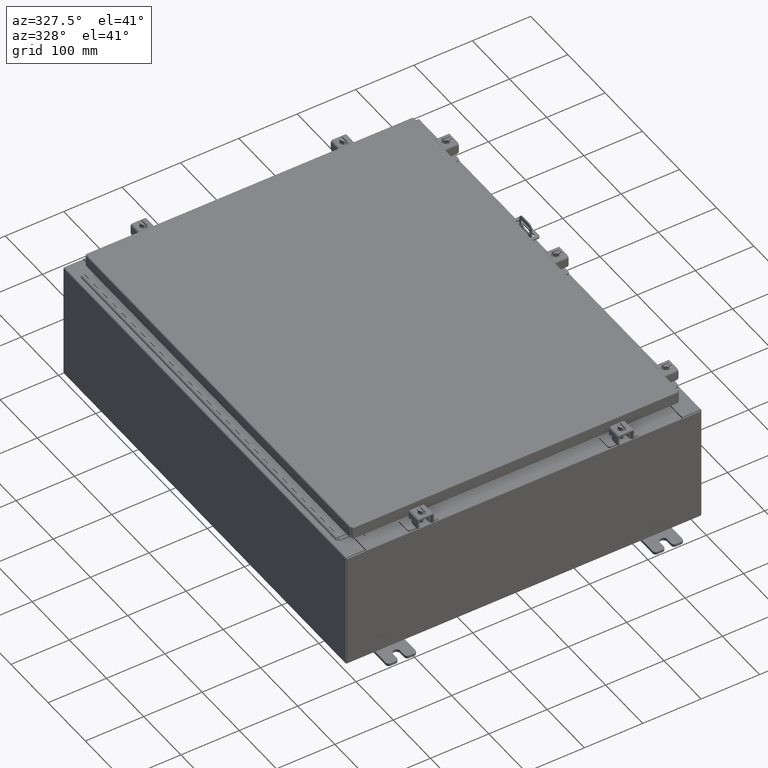
[diagram: clean part render]
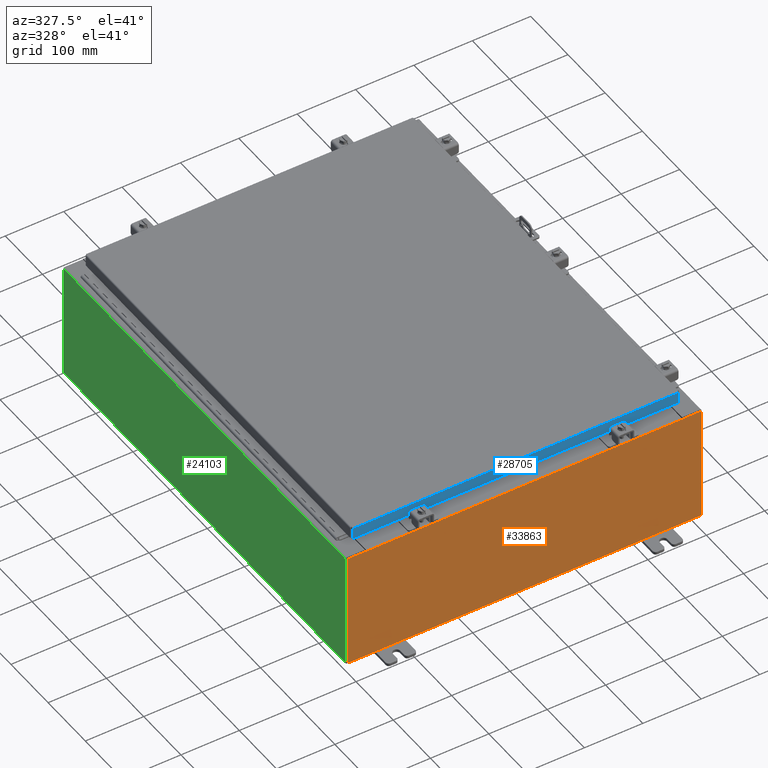
[diagram: same view with three faces highlighted in distinct colors, each labeled with its STEP entity id]
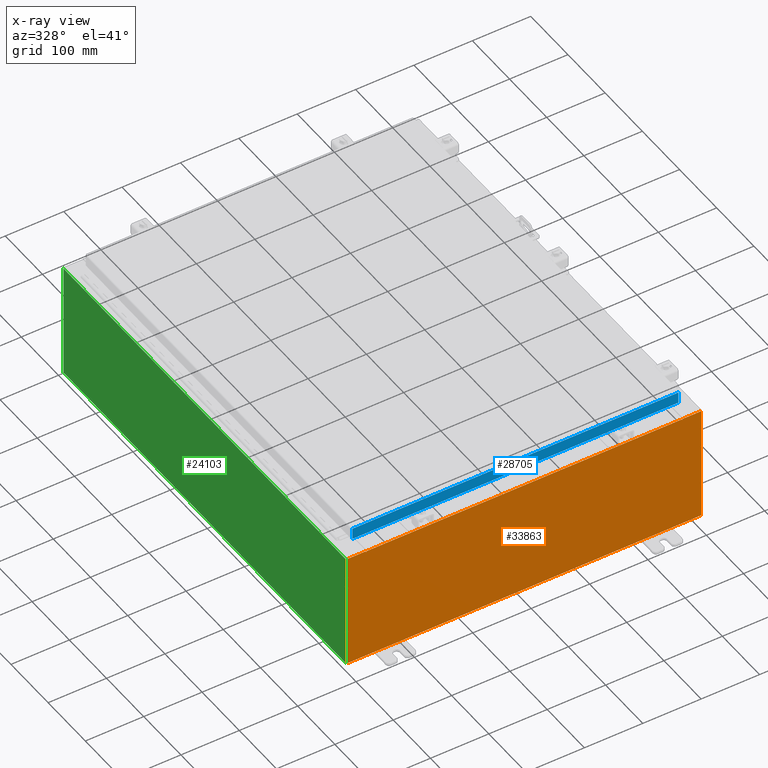
[diagram: x-ray of the same camera — body ghosted, the three highlighted faces saturated]
A machine part, auxiliary view with three faces highlighted in distinct colors.
The next image is the same camera in x-ray (body ghosted, the three faces saturated) — at least one of them is partly hidden behind the body in this view.
Their STEP definitions:

[orange] entity #33863 — the highlighted planar face has unit normal (-0, 1, -0).
#175 = CARTESIAN_POINT ( 'NONE',  ( -10.67455000000000200, -0.0000000000000000000, 0.0000000000000000000 ) ) ;
#621 = ORIENTED_EDGE ( 'NONE', *, *, #10281, .T. ) ;
#691 = EDGE_CURVE ( 'NONE', #26070, #24961, #7888, .T. ) ;
#1352 = VERTEX_POINT ( 'NONE', #3708 ) ;
#1862 = DIRECTION ( 'NONE',  ( 1.000000000000000000, 0.0000000000000000000, 0.0000000000000000000 ) ) ;
#2430 = ORIENTED_EDGE ( 'NONE', *, *, #23355, .F. ) ;
#2598 = CARTESIAN_POINT ( 'NONE',  ( 11.92530000000000000, 0.0000000000000000000, 3.925299999999999600 ) ) ;
#3150 = FACE_OUTER_BOUND ( 'NONE', #28887, .T. ) ;
#3390 = CARTESIAN_POINT ( 'NONE',  ( 11.92530000000000000, 0.0000000000000000000, -3.925299999999999600 ) ) ;
#3708 = CARTESIAN_POINT ( 'NONE',  ( -10.63720000000000400, -0.0000000000000000000, 3.874949999999999700 ) ) ;
#4150 = DIRECTION ( 'NONE',  ( 0.0000000000000000000, 0.0000000000000000000, -1.000000000000000000 ) ) ;
#4455 = CARTESIAN_POINT ( 'NONE',  ( -11.92530000000000000, 0.0000000000000000000, 3.925299999999999600 ) ) ;
#4471 = CARTESIAN_POINT ( 'NONE',  ( 10.67455000000000200, 0.0000000000000000000, 3.925299999999999600 ) ) ;
#4639 = CARTESIAN_POINT ( 'NONE',  ( -10.67455000000000200, 0.0000000000000000000, 3.925299999999999600 ) ) ;
#4763 = CARTESIAN_POINT ( 'NONE',  ( 10.67455000000000200, 0.0000000000000000000, 3.874949999999999700 ) ) ;
#4922 = DIRECTION ( 'NONE',  ( -0.0000000000000000000, 1.000000000000000000, -0.0000000000000000000 ) ) ;
#5095 = CARTESIAN_POINT ( 'NONE',  ( -11.92530000000000000, 0.0000000000000000000, 3.925299999999999600 ) ) ;
#5348 = VECTOR ( 'NONE', #31016, 39.37007874015748100 ) ;
#5390 = PLANE ( 'NONE',  #35977 ) ;
#5596 = CARTESIAN_POINT ( 'NONE',  ( -11.92530000000000000, 0.0000000000000000000, -3.925299999999999600 ) ) ;
#5992 = DIRECTION ( 'NONE',  ( 0.0000000000000000000, 0.0000000000000000000, -1.000000000000000000 ) ) ;
#6221 = EDGE_CURVE ( 'NONE', #14840, #33371, #20781, .T. ) ;
#6314 = VECTOR ( 'NONE', #5992, 39.37007874015748100 ) ;
#7304 = VECTOR ( 'NONE', #27758, 39.37007874015748100 ) ;
#7888 = LINE ( 'NONE', #11807, #36903 ) ;
#8286 = DIRECTION ( 'NONE',  ( 0.0000000000000000000, -1.000000000000000000, 0.0000000000000000000 ) ) ;
#10067 = DIRECTION ( 'NONE',  ( -0.0000000000000000000, 1.000000000000000000, -0.0000000000000000000 ) ) ;
#10133 = CARTESIAN_POINT ( 'NONE',  ( -11.92530000000000000, 0.0000000000000000000, -3.925299999999999600 ) ) ;
#10152 = LINE ( 'NONE', #21468, #16057 ) ;
#10272 = CARTESIAN_POINT ( 'NONE',  ( 10.63720000000000400, 0.0000000000000000000, 3.912299999999999700 ) ) ;
#10281 = EDGE_CURVE ( 'NONE', #33552, #24961, #15913, .T. ) ;
#10290 = VERTEX_POINT ( 'NONE', #4763 ) ;
#10774 = DIRECTION ( 'NONE',  ( -4.340572780400004900E-014, 0.0000000000000000000, -1.000000000000000000 ) ) ;
#11723 = EDGE_CURVE ( 'NONE', #12841, #33087, #14883, .T. ) ;
#11758 = CARTESIAN_POINT ( 'NONE',  ( 11.92530000000000000, 0.0000000000000000000, 3.925299999999999600 ) ) ;
#11807 = CARTESIAN_POINT ( 'NONE',  ( 10.63720000000000400, 0.0000000000000000000, 0.0000000000000000000 ) ) ;
#12841 = VERTEX_POINT ( 'NONE', #2598 ) ;
#13368 = CARTESIAN_POINT ( 'NONE',  ( -11.92530000000000000, 0.0000000000000000000, 3.925299999999999600 ) ) ;
#13982 = CARTESIAN_POINT ( 'NONE',  ( 0.0000000000000000000, 0.0000000000000000000, 0.0000000000000000000 ) ) ;
#14261 = EDGE_CURVE ( 'NONE', #27467, #14840, #10152, .T. ) ;
#14562 = CARTESIAN_POINT ( 'NONE',  ( 10.63720000000000400, 0.0000000000000000000, 3.874949999999999700 ) ) ;
#14840 = VERTEX_POINT ( 'NONE', #4455 ) ;
#14883 = LINE ( 'NONE', #11758, #6314 ) ;
#15482 = AXIS2_PLACEMENT_3D ( 'NONE', #22282, #4922, #25170 ) ;
#15652 = CARTESIAN_POINT ( 'NONE',  ( -10.63720000000000400, -0.0000000000000000000, 0.0000000000000000000 ) ) ;
#15913 = LINE ( 'NONE', #33484, #7304 ) ;
#16057 = VECTOR ( 'NONE', #18530, 39.37007874015748100 ) ;
#16216 = LINE ( 'NONE', #31031, #23943 ) ;
#16795 = ORIENTED_EDGE ( 'NONE', *, *, #6221, .T. ) ;
#17930 = LINE ( 'NONE', #175, #25622 ) ;
#18371 = VECTOR ( 'NONE', #4150, 39.37007874015748100 ) ;
#18530 = DIRECTION ( 'NONE',  ( -0.0000000000000000000, -0.0000000000000000000, 1.000000000000000000 ) ) ;
#19988 = EDGE_CURVE ( 'NONE', #33552, #1352, #33770, .T. ) ;
#20286 = DIRECTION ( 'NONE',  ( 0.0000000000000000000, 0.0000000000000000000, 1.000000000000000000 ) ) ;
#20403 = CIRCLE ( 'NONE', #20528, 0.01867499999999949400 ) ;
#20528 = AXIS2_PLACEMENT_3D ( 'NONE', #27404, #10067, #30318 ) ;
#20781 = LINE ( 'NONE', #5095, #5348 ) ;
#21468 = CARTESIAN_POINT ( 'NONE',  ( -11.92530000000000000, 0.0000000000000000000, 3.925299999999999600 ) ) ;
#21481 = EDGE_CURVE ( 'NONE', #33087, #27467, #24471, .T. ) ;
#21878 = EDGE_CURVE ( 'NONE', #1352, #36231, #20403, .T. ) ;
#22282 = CARTESIAN_POINT ( 'NONE',  ( 10.65587500000000200, 0.0000000000000000000, 3.874949999999999700 ) ) ;
#22585 = ORIENTED_EDGE ( 'NONE', *, *, #21481, .T. ) ;
#23226 = VECTOR ( 'NONE', #1862, 39.37007874015748100 ) ;
#23355 = EDGE_CURVE ( 'NONE', #36070, #10290, #16216, .T. ) ;
#23943 = VECTOR ( 'NONE', #10774, 39.37007874015748100 ) ;
#24471 = LINE ( 'NONE', #5596, #30314 ) ;
#24641 = ORIENTED_EDGE ( 'NONE', *, *, #26937, .T. ) ;
#24961 = VERTEX_POINT ( 'NONE', #10272 ) ;
#25170 = DIRECTION ( 'NONE',  ( 0.0000000000000000000, 0.0000000000000000000, -1.000000000000000000 ) ) ;
#25622 = VECTOR ( 'NONE', #20286, 39.37007874015748100 ) ;
#26070 = VERTEX_POINT ( 'NONE', #14562 ) ;
#26937 = EDGE_CURVE ( 'NONE', #36070, #12841, #30890, .T. ) ;
#27404 = CARTESIAN_POINT ( 'NONE',  ( -10.65587500000000200, 0.0000000000000000000, 3.874949999999999700 ) ) ;
#27467 = VERTEX_POINT ( 'NONE', #10133 ) ;
#27758 = DIRECTION ( 'NONE',  ( 1.000000000000000000, 0.0000000000000000000, 0.0000000000000000000 ) ) ;
#27770 = ORIENTED_EDGE ( 'NONE', *, *, #29191, .F. ) ;
#28522 = DIRECTION ( 'NONE',  ( 0.0000000000000000000, -0.0000000000000000000, -1.000000000000000000 ) ) ;
#28887 = EDGE_LOOP ( 'NONE', ( #27770, #35135, #32862, #621, #34382, #35379, #2430, #24641, #29681, #22585, #36718, #16795 ) ) ;
#29191 = EDGE_CURVE ( 'NONE', #36231, #33371, #17930, .T. ) ;
#29681 = ORIENTED_EDGE ( 'NONE', *, *, #11723, .T. ) ;
#29938 = CARTESIAN_POINT ( 'NONE',  ( -10.63720000000000400, 1.024442997624098700E-016, 3.912299999999999700 ) ) ;
#30314 = VECTOR ( 'NONE', #31631, 39.37007874015748100 ) ;
#30318 = DIRECTION ( 'NONE',  ( 0.0000000000000000000, 0.0000000000000000000, -1.000000000000000000 ) ) ;
#30890 = LINE ( 'NONE', #13368, #23226 ) ;
#31016 = DIRECTION ( 'NONE',  ( 1.000000000000000000, 0.0000000000000000000, 0.0000000000000000000 ) ) ;
#31031 = CARTESIAN_POINT ( 'NONE',  ( 10.67454999999983300, -0.0000000000000000000, -4.633366117301815000E-013 ) ) ;
#31043 = EDGE_CURVE ( 'NONE', #10290, #26070, #37346, .T. ) ;
#31631 = DIRECTION ( 'NONE',  ( -1.000000000000000000, -0.0000000000000000000, -0.0000000000000000000 ) ) ;
#31808 = CARTESIAN_POINT ( 'NONE',  ( -10.67455000000000200, 0.0000000000000000000, 3.874949999999999700 ) ) ;
#32862 = ORIENTED_EDGE ( 'NONE', *, *, #19988, .F. ) ;
#33087 = VERTEX_POINT ( 'NONE', #3390 ) ;
#33371 = VERTEX_POINT ( 'NONE', #4639 ) ;
#33484 = CARTESIAN_POINT ( 'NONE',  ( -10.63720000000000400, 1.024442997624098700E-016, 3.912299999999999700 ) ) ;
#33552 = VERTEX_POINT ( 'NONE', #29938 ) ;
#33770 = LINE ( 'NONE', #15652, #18371 ) ;
#33863 = ADVANCED_FACE ( 'NONE', ( #3150 ), #5390, .F. ) ;
#34382 = ORIENTED_EDGE ( 'NONE', *, *, #691, .F. ) ;
#34890 = DIRECTION ( 'NONE',  ( 0.0000000000000000000, 0.0000000000000000000, 1.000000000000000000 ) ) ;
#35135 = ORIENTED_EDGE ( 'NONE', *, *, #21878, .F. ) ;
#35379 = ORIENTED_EDGE ( 'NONE', *, *, #31043, .F. ) ;
#35977 = AXIS2_PLACEMENT_3D ( 'NONE', #13982, #8286, #28522 ) ;
#36070 = VERTEX_POINT ( 'NONE', #4471 ) ;
#36231 = VERTEX_POINT ( 'NONE', #31808 ) ;
#36718 = ORIENTED_EDGE ( 'NONE', *, *, #14261, .T. ) ;
#36903 = VECTOR ( 'NONE', #34890, 39.37007874015748100 ) ;
#37346 = CIRCLE ( 'NONE', #15482, 0.01867499999999949400 ) ;

[blue] entity #28705 — the highlighted planar face has unit normal (0, 1, -0).
#988 = CARTESIAN_POINT ( 'NONE',  ( -10.98915786437626900, -14.09399999999999900, 3.999012166344521600E-014 ) ) ;
#1231 = LINE ( 'NONE', #34220, #14776 ) ;
#2863 = CARTESIAN_POINT ( 'NONE',  ( -10.98915786437626700, -14.09399999999999900, -0.08770000000000224800 ) ) ;
#3442 = ORIENTED_EDGE ( 'NONE', *, *, #3512, .F. ) ;
#3472 = FACE_OUTER_BOUND ( 'NONE', #9542, .T. ) ;
#3512 = EDGE_CURVE ( 'NONE', #34234, #26695, #33102, .T. ) ;
#3569 = VECTOR ( 'NONE', #17536, 39.37007874015748100 ) ;
#3884 = DIRECTION ( 'NONE',  ( 0.0000000000000000000, -2.818880942772360100E-015, -1.000000000000000000 ) ) ;
#3888 = VERTEX_POINT ( 'NONE', #35443 ) ;
#4520 = AXIS2_PLACEMENT_3D ( 'NONE', #26713, #29634, #12290 ) ;
#5358 = DIRECTION ( 'NONE',  ( 1.000000000000000000, -9.864047639155999200E-017, -9.196021172131615100E-046 ) ) ;
#5614 = ORIENTED_EDGE ( 'NONE', *, *, #15748, .F. ) ;
#5787 = EDGE_CURVE ( 'NONE', #35572, #35469, #11233, .T. ) ;
#6395 = LINE ( 'NONE', #34920, #11334 ) ;
#6505 = PLANE ( 'NONE',  #4520 ) ;
#6804 = VERTEX_POINT ( 'NONE', #2863 ) ;
#8436 = DIRECTION ( 'NONE',  ( -1.000000000000000000, 9.864047639156033700E-017, 1.233005954894504400E-016 ) ) ;
#9542 = EDGE_LOOP ( 'NONE', ( #24091, #19413, #18349, #12276, #5614, #3442 ) ) ;
#11233 = LINE ( 'NONE', #26132, #3569 ) ;
#11334 = VECTOR ( 'NONE', #29068, 39.37007874015748100 ) ;
#12276 = ORIENTED_EDGE ( 'NONE', *, *, #5787, .F. ) ;
#12290 = DIRECTION ( 'NONE',  ( 0.0000000000000000000, 2.818880942772360100E-015, 1.000000000000000000 ) ) ;
#14076 = VECTOR ( 'NONE', #23876, 39.37007874015748100 ) ;
#14539 = VECTOR ( 'NONE', #8436, 39.37007874015748100 ) ;
#14776 = VECTOR ( 'NONE', #5358, 39.37007874015748100 ) ;
#15748 = EDGE_CURVE ( 'NONE', #26695, #35572, #24072, .T. ) ;
#16921 = VECTOR ( 'NONE', #3884, 39.37007874015748100 ) ;
#17536 = DIRECTION ( 'NONE',  ( -1.000000000000000000, 0.0000000000000000000, 0.0000000000000000000 ) ) ;
#18349 = ORIENTED_EDGE ( 'NONE', *, *, #33033, .F. ) ;
#19413 = ORIENTED_EDGE ( 'NONE', *, *, #31436, .T. ) ;
#20510 = CARTESIAN_POINT ( 'NONE',  ( 10.98915786437626900, -14.09400000000000300, -0.8499999999999996400 ) ) ;
#22135 = CARTESIAN_POINT ( 'NONE',  ( -10.23915786437626700, -14.09399999999999900, -0.8500000000000012000 ) ) ;
#23876 = DIRECTION ( 'NONE',  ( 0.0000000000000000000, -2.818880942772360100E-015, -1.000000000000000000 ) ) ;
#24072 = LINE ( 'NONE', #28678, #14539 ) ;
#24091 = ORIENTED_EDGE ( 'NONE', *, *, #28546, .F. ) ;
#26132 = CARTESIAN_POINT ( 'NONE',  ( 10.23915786437626700, -14.09399999999999900, -0.8500000000000012000 ) ) ;
#26695 = VERTEX_POINT ( 'NONE', #20510 ) ;
#26713 = CARTESIAN_POINT ( 'NONE',  ( -1.390238874262646300E-015, -14.09399999999999900, 3.999012166344521600E-014 ) ) ;
#28396 = CARTESIAN_POINT ( 'NONE',  ( 10.23915786437626700, -14.09399999999999900, -0.8500000000000012000 ) ) ;
#28546 = EDGE_CURVE ( 'NONE', #6804, #34234, #1231, .T. ) ;
#28678 = CARTESIAN_POINT ( 'NONE',  ( 11.07799999999999900, -14.09400000000000300, -0.8499999999999996400 ) ) ;
#28705 = ADVANCED_FACE ( 'NONE', ( #3472 ), #6505, .F. ) ;
#29068 = DIRECTION ( 'NONE',  ( -1.000000000000000000, 9.864047639156033700E-017, 1.233005954894504400E-016 ) ) ;
#29634 = DIRECTION ( 'NONE',  ( 9.864047639155998000E-017, 1.000000000000000000, -2.818880942772360100E-015 ) ) ;
#31436 = EDGE_CURVE ( 'NONE', #6804, #3888, #32292, .T. ) ;
#32292 = LINE ( 'NONE', #988, #16921 ) ;
#33033 = EDGE_CURVE ( 'NONE', #35469, #3888, #6395, .T. ) ;
#33102 = LINE ( 'NONE', #35388, #14076 ) ;
#34220 = CARTESIAN_POINT ( 'NONE',  ( 11.07799999999999900, -14.09400000000000100, -0.08770000000000224800 ) ) ;
#34234 = VERTEX_POINT ( 'NONE', #36529 ) ;
#34920 = CARTESIAN_POINT ( 'NONE',  ( 11.07799999999999900, -14.09400000000000300, -0.8499999999999996400 ) ) ;
#35388 = CARTESIAN_POINT ( 'NONE',  ( 10.98915786437626900, -14.09400000000000100, -0.07469999999999978000 ) ) ;
#35443 = CARTESIAN_POINT ( 'NONE',  ( -10.98915786437626700, -14.09400000000000100, -0.8499999999999969800 ) ) ;
#35469 = VERTEX_POINT ( 'NONE', #22135 ) ;
#35572 = VERTEX_POINT ( 'NONE', #28396 ) ;
#36529 = CARTESIAN_POINT ( 'NONE',  ( 10.98915786437624400, -14.09400000000000100, -0.08770000000000224800 ) ) ;

[green] entity #24103 — the highlighted planar face has unit normal (1, 0, 0).
#1776 = VECTOR ( 'NONE', #17308, 39.37007874015748100 ) ;
#2181 = CARTESIAN_POINT ( 'NONE',  ( -12.00000000000000500, -14.92530000000000000, -4.327932773236203200E-014 ) ) ;
#2686 = LINE ( 'NONE', #25913, #1776 ) ;
#4204 = CARTESIAN_POINT ( 'NONE',  ( -12.00000000000003400, 14.92530000000000000, 7.837599999999999200 ) ) ;
#4698 = VERTEX_POINT ( 'NONE', #7792 ) ;
#4787 = EDGE_CURVE ( 'NONE', #30609, #4698, #28001, .T. ) ;
#5270 = CARTESIAN_POINT ( 'NONE',  ( -12.00000000000000500, 14.92530000000000000, 0.01299999999999984700 ) ) ;
#7792 = CARTESIAN_POINT ( 'NONE',  ( -12.00000000000000500, 14.92530000000000000, 0.01299999999999983600 ) ) ;
#8007 = FACE_OUTER_BOUND ( 'NONE', #14482, .T. ) ;
#8459 = PLANE ( 'NONE',  #17884 ) ;
#8766 = CARTESIAN_POINT ( 'NONE',  ( -12.00000000000003400, -14.92530000000000000, 7.837599999999999200 ) ) ;
#11642 = VECTOR ( 'NONE', #27019, 39.37007874015748100 ) ;
#12464 = EDGE_CURVE ( 'NONE', #20932, #16692, #27944, .T. ) ;
#14285 = DIRECTION ( 'NONE',  ( 3.584876173029202900E-015, 0.0000000000000000000, -1.000000000000000000 ) ) ;
#14482 = EDGE_LOOP ( 'NONE', ( #19932, #18858, #20541, #36857 ) ) ;
#16692 = VERTEX_POINT ( 'NONE', #4204 ) ;
#17308 = DIRECTION ( 'NONE',  ( 3.584876173029202900E-015, 0.0000000000000000000, -1.000000000000000000 ) ) ;
#17364 = CARTESIAN_POINT ( 'NONE',  ( -12.00000000000000500, -14.92530000000000000, 0.01299999999999984700 ) ) ;
#17884 = AXIS2_PLACEMENT_3D ( 'NONE', #28703, #31616, #14285 ) ;
#18697 = EDGE_CURVE ( 'NONE', #30609, #20932, #20770, .T. ) ;
#18858 = ORIENTED_EDGE ( 'NONE', *, *, #22163, .T. ) ;
#19932 = ORIENTED_EDGE ( 'NONE', *, *, #12464, .T. ) ;
#20541 = ORIENTED_EDGE ( 'NONE', *, *, #4787, .F. ) ;
#20770 = LINE ( 'NONE', #2181, #27476 ) ;
#20932 = VERTEX_POINT ( 'NONE', #8766 ) ;
#22163 = EDGE_CURVE ( 'NONE', #16692, #4698, #2686, .T. ) ;
#24103 = ADVANCED_FACE ( 'NONE', ( #8007 ), #8459, .F. ) ;
#24152 = CARTESIAN_POINT ( 'NONE',  ( -12.00000000000003400, -14.92530000000000000, 7.837599999999999200 ) ) ;
#25913 = CARTESIAN_POINT ( 'NONE',  ( -12.00000000000000500, 14.92530000000000000, -4.327932773236203200E-014 ) ) ;
#27019 = DIRECTION ( 'NONE',  ( 0.0000000000000000000, 1.000000000000000000, 0.0000000000000000000 ) ) ;
#27476 = VECTOR ( 'NONE', #31138, 39.37007874015748100 ) ;
#27944 = LINE ( 'NONE', #24152, #11642 ) ;
#28001 = LINE ( 'NONE', #5270, #34844 ) ;
#28703 = CARTESIAN_POINT ( 'NONE',  ( -12.00000000000000500, 0.0000000000000000000, -4.327932773236203200E-014 ) ) ;
#30609 = VERTEX_POINT ( 'NONE', #17364 ) ;
#31138 = DIRECTION ( 'NONE',  ( -3.584876173029202900E-015, 0.0000000000000000000, 1.000000000000000000 ) ) ;
#31323 = DIRECTION ( 'NONE',  ( -0.0000000000000000000, 1.000000000000000000, -0.0000000000000000000 ) ) ;
#31616 = DIRECTION ( 'NONE',  ( 1.000000000000000000, 0.0000000000000000000, 3.584876173029202900E-015 ) ) ;
#34844 = VECTOR ( 'NONE', #31323, 39.37007874015748100 ) ;
#36857 = ORIENTED_EDGE ( 'NONE', *, *, #18697, .T. ) ;